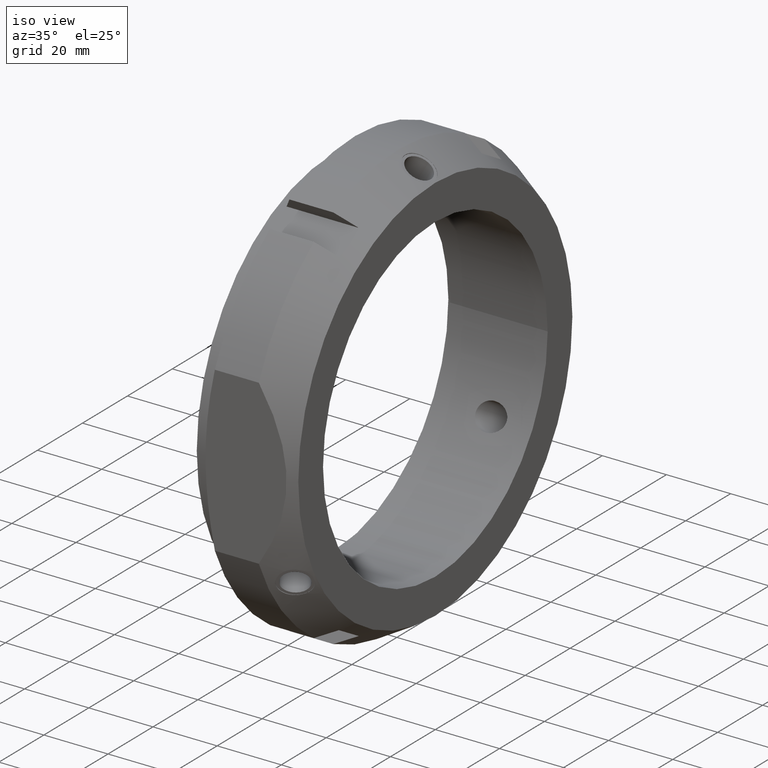
[diagram: clean part render]
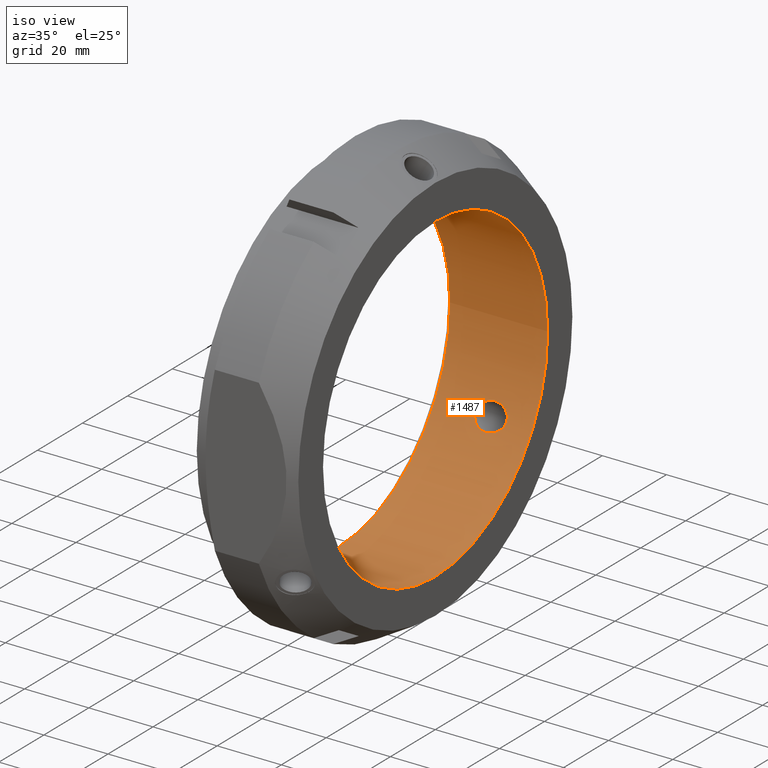
[diagram: same view with one face highlighted and labeled with its STEP entity id]
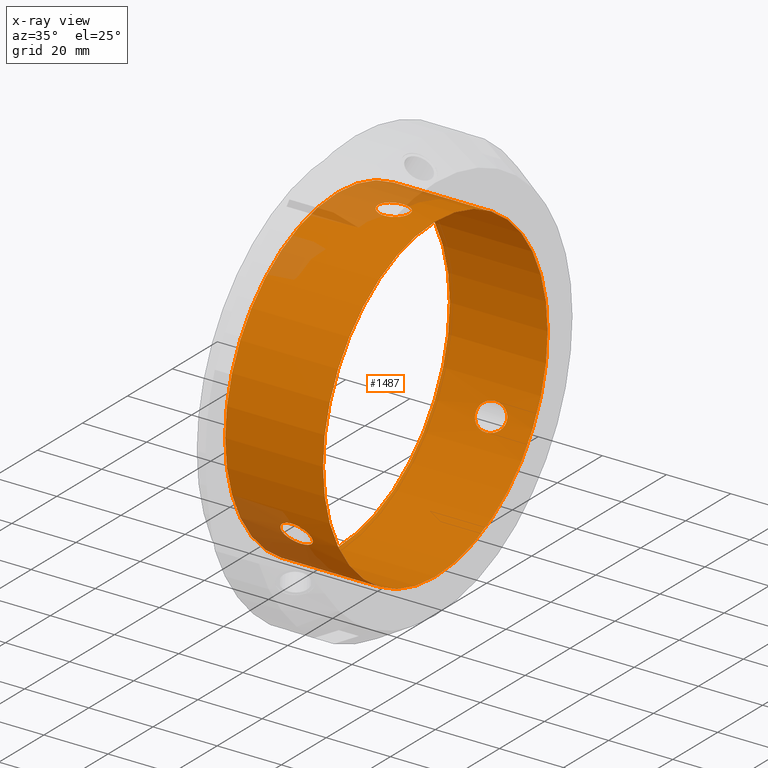
[diagram: x-ray of the same camera — body ghosted, the highlighted face saturated]
A machine part, iso view. The second image highlights one B-rep face of the part: STEP entity #1487.
The next image is the same camera in x-ray: the body ghosted, the highlighted face saturated — about 9% of this face is hidden behind the body in this view.
In plain terms, the highlighted cylindrical surface (bore or boss wall) has radius 50 mm, axis along (1, 0, 0).
Its self-contained STEP definition (entity closure, byte-faithful):
#1090=CARTESIAN_POINT('',(18.966071774459138,45.243107661688661,-21.285234532718892));
#1091=VERTEX_POINT('',#1090);
#1092=CARTESIAN_POINT('',(18.966071774459138,45.243107661688661,-21.285234532718892));
#1093=CARTESIAN_POINT('',(19.564057097855819,45.243107661688661,-21.285234532718892));
#1094=CARTESIAN_POINT('',(20.207602040596168,45.200174853838462,-21.377295729067981));
#1095=CARTESIAN_POINT('',(21.415077983871576,45.018023020827172,-21.758267003411568));
#1096=CARTESIAN_POINT('',(21.979020257696355,44.878487980521641,-22.046990167848328));
#1097=CARTESIAN_POINT('',(22.856100228840887,44.547547593142426,-22.707732057124211));
#1098=CARTESIAN_POINT('',(23.241064483841811,44.339306614450592,-23.114737298227329));
#1099=CARTESIAN_POINT('',(23.765305789414697,43.853817341239534,-24.023070106617897));
#1100=CARTESIAN_POINT('',(23.903399314213623,43.575725576614659,-24.524629324624808));
#1101=CARTESIAN_POINT('',(23.903399314213623,43.039267782167308,-25.453801480723964));
#1102=CARTESIAN_POINT('',(23.777355672974036,42.756400201572127,-25.925625807682493));
#1103=CARTESIAN_POINT('',(23.294058189231759,42.231716591941819,-26.771812497153892));
#1104=CARTESIAN_POINT('',(22.937941832685311,41.990076880700364,-27.146933297629996));
#1105=CARTESIAN_POINT('',(22.084690918967127,41.569684224920671,-27.787306187873114));
#1106=CARTESIAN_POINT('',(21.505534733872036,41.375730739120272,-28.073132888802661));
#1107=CARTESIAN_POINT('',(20.257578197959795,41.118237415142218,-28.448944374542208));
#1108=CARTESIAN_POINT('',(19.588733671017287,41.055107661688652,-28.539063314817351));
#1109=CARTESIAN_POINT('',(18.363721867884557,41.055107661688652,-28.539063314817351));
#1110=CARTESIAN_POINT('',(17.715556210316642,41.114512832468229,-28.45428365541575));
#1111=CARTESIAN_POINT('',(16.512478168280012,41.36591434170289,-28.087551592179967));
#1112=CARTESIAN_POINT('',(15.957742902095088,41.557836170186633,-27.804967364653209));
#1113=CARTESIAN_POINT('',(15.138465491983172,41.980220989583103,-27.162259957258481));
#1114=CARTESIAN_POINT('',(14.799637138922359,42.226418643933165,-26.78026774140903));
#1115=CARTESIAN_POINT('',(14.34612323748064,42.756804774261113,-25.925061566482348));
#1116=CARTESIAN_POINT('',(14.231627604749008,43.040596136570706,-25.451500703406804));
#1117=CARTESIAN_POINT('',(14.231627604749008,43.561944241873121,-24.548499296593249));
#1118=CARTESIAN_POINT('',(14.346123237480635,43.830164298379835,-24.065948335920776));
#1119=CARTESIAN_POINT('',(14.79963713892235,44.305601506175691,-23.179017385778515));
#1120=CARTESIAN_POINT('',(15.138465491983171,44.513317641974197,-22.774807854834485));
#1121=CARTESIAN_POINT('',(15.957742902095088,44.858726174280235,-22.087658167366882));
#1122=CARTESIAN_POINT('',(16.512478168280015,45.007490379785324,-21.780156874595804));
#1123=CARTESIAN_POINT('',(17.715556210316649,45.199388908312457,-21.379070749430952));
#1124=CARTESIAN_POINT('',(18.363721867884557,45.243107661688661,-21.285234532718892));
#1125=CARTESIAN_POINT('',(18.966071774459138,45.243107661688661,-21.285234532718892));
#1126=B_SPLINE_CURVE_WITH_KNOTS('',3,(#1092,#1093,#1094,#1095,#1096,#1097,#1098,#1099,#1100,#1101,#1102,#1103,#1104,#1105,#1106,#1107,#1108,#1109,#1110,#1111,#1112,#1113,#1114,#1115,#1116,#1117,#1118,#1119,#1120,#1121,#1122,#1123,#1124,#1125),.UNSPECIFIED.,.T.,.U.,(4,2,2,2,2,2,2,2,2,2,2,2,2,2,2,2,4),(0.0,0.179395597019005,0.358791194038009,0.523464426473651,0.688137658909293,0.845339103142063,1.002540547374834,1.189339116342277,1.376137685309721,1.556842657282096,1.73754762925447,1.893952060845196,2.050356492435921,2.206760924026646,2.363165355617372,2.543870327589747,2.724575299562122),.UNSPECIFIED.);
#1127=EDGE_CURVE('',#1091,#1091,#1126,.T.);
#1180=CARTESIAN_POINT('',(18.966071774459138,-41.05510766168868,-28.539063314817316));
#1181=VERTEX_POINT('',#1180);
#1182=CARTESIAN_POINT('',(18.966071774459138,-41.05510766168868,-28.539063314817316));
#1183=CARTESIAN_POINT('',(19.588733671017284,-41.05510766168868,-28.539063314817316));
#1184=CARTESIAN_POINT('',(20.257578197959795,-41.118237415142232,-28.44894437454218));
#1185=CARTESIAN_POINT('',(21.505534733872047,-41.3757307391203,-28.073132888802625));
#1186=CARTESIAN_POINT('',(22.084690918967134,-41.569684224920707,-27.787306187873078));
#1187=CARTESIAN_POINT('',(22.937941832685318,-41.9900768807004,-27.14693329762995));
#1188=CARTESIAN_POINT('',(23.29405818923177,-42.231716591941833,-26.771812497153846));
#1189=CARTESIAN_POINT('',(23.777355672974039,-42.756400201572148,-25.925625807682444));
#1190=CARTESIAN_POINT('',(23.90339931421363,-43.039267782167329,-25.453801480723925));
#1191=CARTESIAN_POINT('',(23.90339931421363,-43.563272596276562,-24.54619851927605));
#1192=CARTESIAN_POINT('',(23.777355672974032,-43.830450659248541,-24.065315845094322));
#1193=CARTESIAN_POINT('',(23.294058189231759,-44.300928023859861,-23.187833165469456));
#1194=CARTESIAN_POINT('',(22.937941832685315,-44.504972310939422,-22.79100663673319));
#1195=CARTESIAN_POINT('',(22.084690918967134,-44.849355173894985,-22.106749472142006));
#1196=CARTESIAN_POINT('',(21.505534733872032,-44.999911615079647,-21.795867475821545));
#1197=CARTESIAN_POINT('',(20.257578197959781,-45.196627246775051,-21.384965973081872));
#1198=CARTESIAN_POINT('',(19.588733671017287,-45.243107661688668,-21.285234532718857));
#1199=CARTESIAN_POINT('',(18.363721867884561,-45.243107661688668,-21.285234532718857));
#1200=CARTESIAN_POINT('',(17.715556210316649,-45.199388908312486,-21.37907074943092));
#1201=CARTESIAN_POINT('',(16.512478168280012,-45.007490379785352,-21.780156874595775));
#1202=CARTESIAN_POINT('',(15.957742902095088,-44.858726174280235,-22.087658167366836));
#1203=CARTESIAN_POINT('',(15.138465491983176,-44.513317641974211,-22.774807854834439));
#1204=CARTESIAN_POINT('',(14.799637138922355,-44.305601506175698,-23.179017385778472));
#1205=CARTESIAN_POINT('',(14.346123237480635,-43.830164298379842,-24.065948335920741));
#1206=CARTESIAN_POINT('',(14.231627604749015,-43.56194424187315,-24.548499296593214));
#1207=CARTESIAN_POINT('',(14.231627604749015,-43.040596136570734,-25.451500703406769));
#1208=CARTESIAN_POINT('',(14.34612323748064,-42.756804774261148,-25.925061566482309));
#1209=CARTESIAN_POINT('',(14.799637138922353,-42.226418643933201,-26.780267741408984));
#1210=CARTESIAN_POINT('',(15.138465491983178,-41.980220989583117,-27.162259957258435));
#1211=CARTESIAN_POINT('',(15.957742902095092,-41.557836170186661,-27.804967364653166));
#1212=CARTESIAN_POINT('',(16.512478168280008,-41.365914341702911,-28.087551592179942));
#1213=CARTESIAN_POINT('',(17.715556210316649,-41.11451283246825,-28.454283655415722));
#1214=CARTESIAN_POINT('',(18.363721867884561,-41.05510766168868,-28.539063314817316));
#1215=CARTESIAN_POINT('',(18.966071774459142,-41.05510766168868,-28.539063314817316));
#1216=B_SPLINE_CURVE_WITH_KNOTS('',3,(#1182,#1183,#1184,#1185,#1186,#1187,#1188,#1189,#1190,#1191,#1192,#1193,#1194,#1195,#1196,#1197,#1198,#1199,#1200,#1201,#1202,#1203,#1204,#1205,#1206,#1207,#1208,#1209,#1210,#1211,#1212,#1213,#1214,#1215),.UNSPECIFIED.,.T.,.U.,(4,2,2,2,2,2,2,2,2,2,2,2,2,2,2,2,4),(0.0,0.186798568967444,0.373597137934888,0.530798582167658,0.688000026400428,0.845201470633197,1.002402914865967,1.189201483833411,1.376000052800855,1.556705024773229,1.737409996745604,1.893814428336329,2.050218859927055,2.206623291517779,2.363027723108504,2.543732695080879,2.724437667053254),.UNSPECIFIED.);
#1217=EDGE_CURVE('',#1181,#1181,#1216,.T.);
#1270=CARTESIAN_POINT('',(18.966071774459145,-4.188000000000001,49.824297847536194));
#1271=VERTEX_POINT('',#1270);
#1272=CARTESIAN_POINT('',(18.966071774459145,-4.188000000000001,49.824297847536194));
#1273=CARTESIAN_POINT('',(19.588733671017291,-4.188000000000001,49.824297847536194));
#1274=CARTESIAN_POINT('',(20.257578197959806,-4.078389831632807,49.833910347624055));
#1275=CARTESIAN_POINT('',(21.50553473387205,-3.624180875959354,49.869000364624171));
#1276=CARTESIAN_POINT('',(22.084690918967134,-3.279670948974274,49.894055660015098));
#1277=CARTESIAN_POINT('',(22.937941832685318,-2.514895430239018,49.937939934363165));
#1278=CARTESIAN_POINT('',(23.29405818923177,-2.069211431918037,49.959645662623338));
#1279=CARTESIAN_POINT('',(23.777355672974039,-1.074050457676398,49.990941652776812));
#1280=CARTESIAN_POINT('',(23.903399314213626,-0.524004814109233,50.0));
#1281=CARTESIAN_POINT('',(23.903399314213626,0.524004814109233,50.0));
#1282=CARTESIAN_POINT('',(23.777355672974039,1.074050457676398,49.990941652776812));
#1283=CARTESIAN_POINT('',(23.29405818923177,2.069211431918037,49.959645662623338));
#1284=CARTESIAN_POINT('',(22.937941832685315,2.514895430239017,49.937939934363165));
#1285=CARTESIAN_POINT('',(22.084690918967134,3.279670948974273,49.894055660015098));
#1286=CARTESIAN_POINT('',(21.505534733872047,3.624180875959355,49.869000364624171));
#1287=CARTESIAN_POINT('',(20.257578197959806,4.078389831632805,49.833910347624055));
#1288=CARTESIAN_POINT('',(19.588733671017291,4.188,49.824297847536187));
#1289=CARTESIAN_POINT('',(18.363721867884561,4.188,49.824297847536194));
#1290=CARTESIAN_POINT('',(17.715556210316656,4.08487607584424,49.833354404846652));
#1291=CARTESIAN_POINT('',(16.512478168280015,3.641576038082446,49.867708466775731));
#1292=CARTESIAN_POINT('',(15.957742902095099,3.300890004093583,49.892625532020034));
#1293=CARTESIAN_POINT('',(15.138465491983181,2.533096652391083,49.937067812092913));
#1294=CARTESIAN_POINT('',(14.799637138922357,2.079182862242514,49.959285127187485));
#1295=CARTESIAN_POINT('',(14.34612323748064,1.073359524118718,49.991009902403064));
#1296=CARTESIAN_POINT('',(14.231627604749011,0.521348105302418,50.0));
#1297=CARTESIAN_POINT('',(14.231627604749011,-0.521348105302418,50.0));
#1298=CARTESIAN_POINT('',(14.34612323748064,-1.073359524118718,49.991009902403071));
#1299=CARTESIAN_POINT('',(14.799637138922357,-2.079182862242515,49.959285127187492));
#1300=CARTESIAN_POINT('',(15.138465491983181,-2.533096652391084,49.937067812092913));
#1301=CARTESIAN_POINT('',(15.957742902095099,-3.300890004093583,49.892625532020034));
#1302=CARTESIAN_POINT('',(16.512478168280015,-3.641576038082446,49.867708466775731));
#1303=CARTESIAN_POINT('',(17.715556210316652,-4.084876075844239,49.833354404846652));
#1304=CARTESIAN_POINT('',(18.363721867884561,-4.188,49.824297847536201));
#1305=CARTESIAN_POINT('',(18.966071774459145,-4.188,49.824297847536201));
#1306=B_SPLINE_CURVE_WITH_KNOTS('',3,(#1272,#1273,#1274,#1275,#1276,#1277,#1278,#1279,#1280,#1281,#1282,#1283,#1284,#1285,#1286,#1287,#1288,#1289,#1290,#1291,#1292,#1293,#1294,#1295,#1296,#1297,#1298,#1299,#1300,#1301,#1302,#1303,#1304,#1305),.UNSPECIFIED.,.T.,.U.,(4,2,2,2,2,2,2,2,2,2,2,2,2,2,2,2,4),(0.0,0.186798568967444,0.373597137934888,0.530798582167658,0.688000026400428,0.845201470633197,1.002402914865967,1.189201483833411,1.376000052800855,1.556705024773229,1.737409996745604,1.893814428336329,2.050218859927055,2.20662329151778,2.363027723108505,2.54373269508088,2.724437667053254),.UNSPECIFIED.);
#1307=EDGE_CURVE('',#1271,#1271,#1306,.T.);
#1371=CARTESIAN_POINT('',(1.499999999999985,50.0,0.0));
#1372=VERTEX_POINT('',#1371);
#1373=CARTESIAN_POINT('',(1.499999999999985,0.0,0.0));
#1374=DIRECTION('',(1.0,0.0,0.0));
#1375=DIRECTION('',(0.0,1.0,0.0));
#1376=AXIS2_PLACEMENT_3D('',#1373,#1374,#1375);
#1377=CIRCLE('',#1376,50.0);
#1378=EDGE_CURVE('',#1372,#1372,#1377,.T.);
#1455=CARTESIAN_POINT('',(31.999999999999989,50.0,0.0));
#1456=VERTEX_POINT('',#1455);
#1457=CARTESIAN_POINT('',(31.999999999999989,0.0,0.0));
#1458=DIRECTION('',(1.0,0.0,0.0));
#1459=DIRECTION('',(0.0,1.0,0.0));
#1460=AXIS2_PLACEMENT_3D('',#1457,#1458,#1459);
#1461=CIRCLE('',#1460,50.0);
#1462=EDGE_CURVE('',#1456,#1456,#1461,.T.);
#1467=CARTESIAN_POINT('',(16.749999999999986,0.0,0.0));
#1468=DIRECTION('',(1.0,0.0,0.0));
#1469=DIRECTION('',(0.0,1.0,0.0));
#1470=AXIS2_PLACEMENT_3D('',#1467,#1468,#1469);
#1471=CYLINDRICAL_SURFACE('',#1470,50.0);
#1472=ORIENTED_EDGE('',*,*,#1378,.F.);
#1473=EDGE_LOOP('',(#1472));
#1474=FACE_OUTER_BOUND('',#1473,.T.);
#1475=ORIENTED_EDGE('',*,*,#1127,.T.);
#1476=EDGE_LOOP('',(#1475));
#1477=FACE_BOUND('',#1476,.T.);
#1478=ORIENTED_EDGE('',*,*,#1217,.T.);
#1479=EDGE_LOOP('',(#1478));
#1480=FACE_BOUND('',#1479,.T.);
#1481=ORIENTED_EDGE('',*,*,#1307,.T.);
#1482=EDGE_LOOP('',(#1481));
#1483=FACE_BOUND('',#1482,.T.);
#1484=ORIENTED_EDGE('',*,*,#1462,.T.);
#1485=EDGE_LOOP('',(#1484));
#1486=FACE_BOUND('',#1485,.T.);
#1487=ADVANCED_FACE('',(#1474,#1477,#1480,#1483,#1486),#1471,.F.);